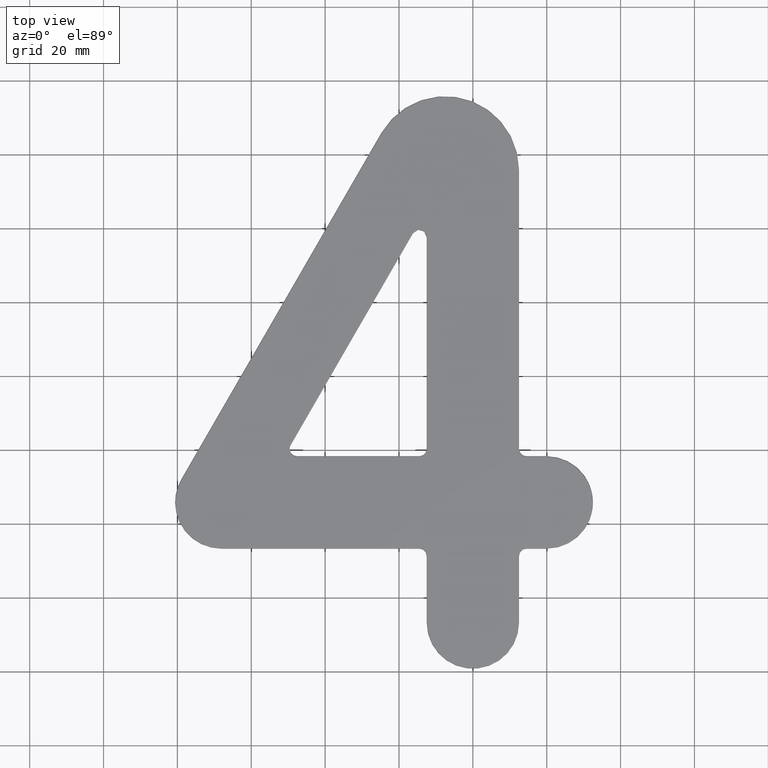
[diagram: clean part render]
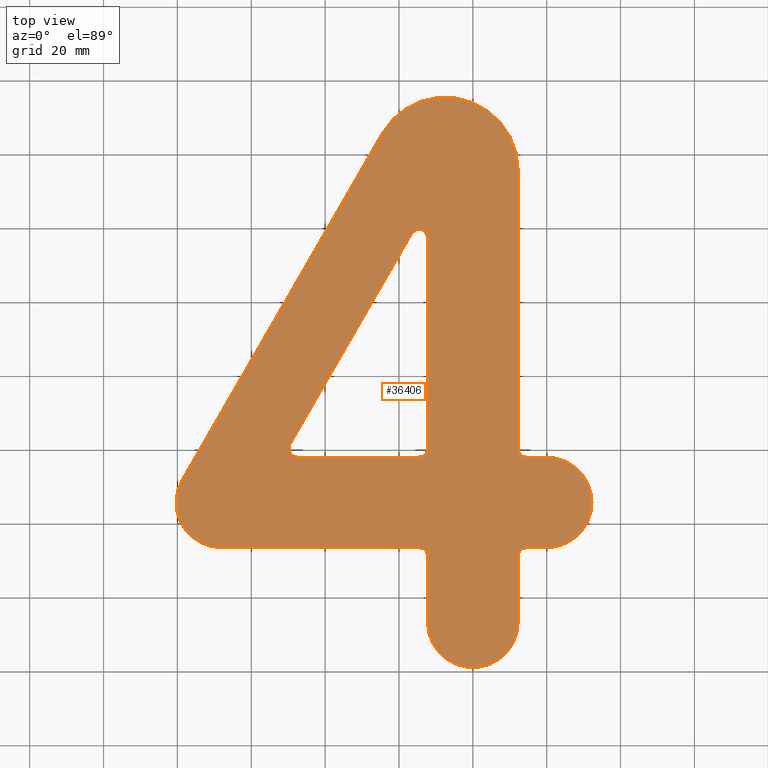
[diagram: same view with one face highlighted and labeled with its STEP entity id]
A machine part, top view. The second image highlights one B-rep face of the part: STEP entity #36406.
In plain terms, the highlighted planar face has unit normal (0, 0, 1).
Its self-contained STEP definition (entity closure, byte-faithful):
#97 = CARTESIAN_POINT ( 'NONE',  ( -14.50000000000002132, 32.75000000000000000, 2.000000000000000000 ) ) ;
#182 = CARTESIAN_POINT ( 'NONE',  ( -14.50000000000000178, 59.50000000000001421, 2.000000000000000000 ) ) ;
#508 = ORIENTED_EDGE ( 'NONE', *, *, #34307, .T. ) ;
#1076 = VERTEX_POINT ( 'NONE', #37342 ) ;
#1148 = DIRECTION ( 'NONE',  ( 1.000000000000000000, 1.261617073437681598E-15, -0.000000000000000000 ) ) ;
#1195 = VERTEX_POINT ( 'NONE', #7301 ) ;
#1328 = EDGE_CURVE ( 'NONE', #19985, #13624, #31249, .T. ) ;
#1474 = ORIENTED_EDGE ( 'NONE', *, *, #7511, .T. ) ;
#1693 = CARTESIAN_POINT ( 'NONE',  ( 12.25000000000000178, 59.50000000000002842, 2.000000000000000000 ) ) ;
#2004 = DIRECTION ( 'NONE',  ( 1.000000000000000000, 0.000000000000000000, 0.000000000000000000 ) ) ;
#2335 = VERTEX_POINT ( 'NONE', #16020 ) ;
#2374 = VERTEX_POINT ( 'NONE', #1693 ) ;
#2572 = VERTEX_POINT ( 'NONE', #27486 ) ;
#2852 = EDGE_LOOP ( 'NONE', ( #22075, #508, #36010, #5248, #38064, #18724, #24200, #31001, #17956, #20619, #1474, #6455, #3796, #29152, #17318 ) ) ;
#3045 = FACE_OUTER_BOUND ( 'NONE', #2852, .T. ) ;
#3188 = DIRECTION ( 'NONE',  ( 1.000000000000000000, 0.000000000000000000, 0.000000000000000000 ) ) ;
#3327 = CARTESIAN_POINT ( 'NONE',  ( 14.50000000000000178, 59.50000000000001421, 2.000000000000000000 ) ) ;
#3717 = VECTOR ( 'NONE', #34112, 1000.000000000000000 ) ;
#3796 = ORIENTED_EDGE ( 'NONE', *, *, #22690, .T. ) ;
#3880 = DIRECTION ( 'NONE',  ( -0.5000000000000008882, -0.8660254037844382635, 0.000000000000000000 ) ) ;
#4032 = CIRCLE ( 'NONE', #37446, 2.250000000000001776 ) ;
#4129 = CARTESIAN_POINT ( 'NONE',  ( -14.49999999999999112, 116.8756443470179534, 2.000000000000000000 ) ) ;
#4317 = AXIS2_PLACEMENT_3D ( 'NONE', #36391, #13110, #3188 ) ;
#5086 = ORIENTED_EDGE ( 'NONE', *, *, #22251, .T. ) ;
#5248 = ORIENTED_EDGE ( 'NONE', *, *, #25990, .T. ) ;
#5308 = VERTEX_POINT ( 'NONE', #6376 ) ;
#6376 = CARTESIAN_POINT ( 'NONE',  ( -12.24999999999999112, 116.8756443470178255, 2.000000000000000000 ) ) ;
#6455 = ORIENTED_EDGE ( 'NONE', *, *, #29032, .T. ) ;
#6563 = CARTESIAN_POINT ( 'NONE',  ( 32.25000000000000000, 45.00000000000000711, 2.000000000000000000 ) ) ;
#6641 = VECTOR ( 'NONE', #17463, 1000.000000000000000 ) ;
#7301 = CARTESIAN_POINT ( 'NONE',  ( -24.60400172474265545, 144.8750000000000284, 2.000000000000000000 ) ) ;
#7511 = EDGE_CURVE ( 'NONE', #2374, #23396, #34806, .T. ) ;
#7585 = EDGE_CURVE ( 'NONE', #22302, #25539, #21576, .T. ) ;
#7595 = VECTOR ( 'NONE', #17344, 1000.000000000000000 ) ;
#7763 = CARTESIAN_POINT ( 'NONE',  ( -58.01953692895862247, 45.99759526419177291, 2.000000000000000000 ) ) ;
#8254 = EDGE_LOOP ( 'NONE', ( #10257, #19743, #25417, #34131, #5086, #33008 ) ) ;
#8567 = CIRCLE ( 'NONE', #18364, 2.249999999999998668 ) ;
#8623 = DIRECTION ( 'NONE',  ( -1.000000000000000000, -2.094707070687897218E-16, 0.000000000000000000 ) ) ;
#8661 = EDGE_CURVE ( 'NONE', #1076, #37090, #14910, .T. ) ;
#8736 = VERTEX_POINT ( 'NONE', #38084 ) ;
#8839 = CARTESIAN_POINT ( 'NONE',  ( -47.62584370867912753, 59.50000000000000711, 2.000000000000000000 ) ) ;
#9061 = DIRECTION ( 'NONE',  ( -0.000000000000000000, -0.000000000000000000, -1.000000000000000000 ) ) ;
#9135 = DIRECTION ( 'NONE',  ( 1.000000000000000000, 0.000000000000000000, 0.000000000000000000 ) ) ;
#9142 = CARTESIAN_POINT ( 'NONE',  ( 12.25000000000000711, 30.49999999999999289, 2.000000000000000000 ) ) ;
#9284 = CARTESIAN_POINT ( 'NONE',  ( -14.50000000000000711, 30.50000000000000711, 2.000000000000000000 ) ) ;
#9582 = AXIS2_PLACEMENT_3D ( 'NONE', #3327, #9061, #30330 ) ;
#9731 = CARTESIAN_POINT ( 'NONE',  ( -7.499999999999992895, 135.0000000000000000, 2.000000000000000000 ) ) ;
#10257 = ORIENTED_EDGE ( 'NONE', *, *, #8661, .T. ) ;
#11102 = FACE_BOUND ( 'NONE', #8254, .T. ) ;
#11530 = CARTESIAN_POINT ( 'NONE',  ( -7.077601392927059136E-15, 57.25000000000000711, 2.000000000000000000 ) ) ;
#11627 = VECTOR ( 'NONE', #1148, 1000.000000000000000 ) ;
#12133 = VECTOR ( 'NONE', #17369, 1000.000000000000000 ) ;
#12174 = VERTEX_POINT ( 'NONE', #13279 ) ;
#12363 = EDGE_CURVE ( 'NONE', #2572, #22302, #8567, .T. ) ;
#12757 = AXIS2_PLACEMENT_3D ( 'NONE', #18437, #36364, #9135 ) ;
#13110 = DIRECTION ( 'NONE',  ( 0.000000000000000000, 0.000000000000000000, 1.000000000000000000 ) ) ;
#13279 = CARTESIAN_POINT ( 'NONE',  ( -12.25000000000000178, 59.50000000000002842, 2.000000000000000000 ) ) ;
#13624 = VERTEX_POINT ( 'NONE', #34029 ) ;
#14297 = EDGE_CURVE ( 'NONE', #35917, #1076, #23399, .T. ) ;
#14334 = CARTESIAN_POINT ( 'NONE',  ( 14.50000000000000888, 30.50000000000001066, 2.000000000000000000 ) ) ;
#14360 = CARTESIAN_POINT ( 'NONE',  ( 2.296212748401284817E-15, 12.49999999999998934, 2.000000000000000000 ) ) ;
#14474 = CIRCLE ( 'NONE', #34044, 12.25000000000001243 ) ;
#14599 = CIRCLE ( 'NONE', #37598, 2.250000000000000444 ) ;
#14910 = LINE ( 'NONE', #7763, #36655 ) ;
#14991 = CARTESIAN_POINT ( 'NONE',  ( -12.25000000000001066, 12.49999999999999112, 2.000000000000000000 ) ) ;
#15001 = LINE ( 'NONE', #9142, #12133 ) ;
#15453 = DIRECTION ( 'NONE',  ( 1.000000000000000000, 0.000000000000000000, 0.000000000000000000 ) ) ;
#15623 = DIRECTION ( 'NONE',  ( 1.000000000000000000, 1.850371707708593813E-14, 0.000000000000000000 ) ) ;
#15666 = LINE ( 'NONE', #97, #7595 ) ;
#15993 = CARTESIAN_POINT ( 'NONE',  ( -47.62584370867909911, 57.25000000000000000, 2.000000000000000000 ) ) ;
#16020 = CARTESIAN_POINT ( 'NONE',  ( -14.50000000000002309, 32.75000000000000000, 2.000000000000000000 ) ) ;
#16084 = CARTESIAN_POINT ( 'NONE',  ( -12.25000000000000711, 30.49999999999999289, 2.000000000000000000 ) ) ;
#16116 = DIRECTION ( 'NONE',  ( -1.814069536702611800E-16, -1.000000000000000000, 0.000000000000000000 ) ) ;
#16182 = CARTESIAN_POINT ( 'NONE',  ( 12.25000000000001421, 12.49999999999999112, 2.000000000000000000 ) ) ;
#17060 = LINE ( 'NONE', #18564, #3717 ) ;
#17318 = ORIENTED_EDGE ( 'NONE', *, *, #33075, .T. ) ;
#17344 = DIRECTION ( 'NONE',  ( 1.000000000000000000, 2.588087948007469279E-16, -0.000000000000000000 ) ) ;
#17369 = DIRECTION ( 'NONE',  ( -2.891205793294677340E-16, 1.000000000000000000, 0.000000000000000000 ) ) ;
#17463 = DIRECTION ( 'NONE',  ( -1.000000000000000000, 0.000000000000000000, 0.000000000000000000 ) ) ;
#17584 = DIRECTION ( 'NONE',  ( 0.000000000000000000, 0.000000000000000000, 1.000000000000000000 ) ) ;
#17796 = EDGE_CURVE ( 'NONE', #13624, #23073, #34565, .T. ) ;
#17956 = ORIENTED_EDGE ( 'NONE', *, *, #17796, .T. ) ;
#18185 = DIRECTION ( 'NONE',  ( 1.000000000000000000, 0.000000000000000000, 0.000000000000000000 ) ) ;
#18325 = DIRECTION ( 'NONE',  ( -0.000000000000000000, -0.000000000000000000, -1.000000000000000000 ) ) ;
#18364 = AXIS2_PLACEMENT_3D ( 'NONE', #14334, #29126, #2004 ) ;
#18437 = CARTESIAN_POINT ( 'NONE',  ( 20.00000000000000355, 45.00000000000000711, 2.000000000000000000 ) ) ;
#18564 = CARTESIAN_POINT ( 'NONE',  ( -12.25000000000001243, 12.49999999999999112, 2.000000000000000000 ) ) ;
#18580 = CARTESIAN_POINT ( 'NONE',  ( -14.50000000000001599, 57.25000000000000711, 2.000000000000000000 ) ) ;
#18689 = DIRECTION ( 'NONE',  ( 6.892940964146254661E-17, 1.000000000000000000, -0.000000000000000000 ) ) ;
#18724 = ORIENTED_EDGE ( 'NONE', *, *, #7585, .T. ) ;
#18895 = DIRECTION ( 'NONE',  ( -0.000000000000000000, -0.000000000000000000, -1.000000000000000000 ) ) ;
#19233 = VERTEX_POINT ( 'NONE', #16182 ) ;
#19451 = AXIS2_PLACEMENT_3D ( 'NONE', #14360, #17584, #32747 ) ;
#19743 = ORIENTED_EDGE ( 'NONE', *, *, #31456, .T. ) ;
#19762 = VERTEX_POINT ( 'NONE', #18580 ) ;
#19985 = VERTEX_POINT ( 'NONE', #6563 ) ;
#20445 = EDGE_CURVE ( 'NONE', #2335, #36228, #14599, .T. ) ;
#20619 = ORIENTED_EDGE ( 'NONE', *, *, #35171, .T. ) ;
#20635 = VECTOR ( 'NONE', #18689, 1000.000000000000000 ) ;
#21576 = LINE ( 'NONE', #25117, #11627 ) ;
#22075 = ORIENTED_EDGE ( 'NONE', *, *, #20445, .T. ) ;
#22251 = EDGE_CURVE ( 'NONE', #19762, #35917, #29673, .T. ) ;
#22275 = CARTESIAN_POINT ( 'NONE',  ( 2.296212748401284817E-15, 12.49999999999998934, 2.000000000000000000 ) ) ;
#22302 = VERTEX_POINT ( 'NONE', #37146 ) ;
#22603 = CARTESIAN_POINT ( 'NONE',  ( -68.12177826491084431, 32.75000000000000711, 2.000000000000000000 ) ) ;
#22690 = EDGE_CURVE ( 'NONE', #1195, #8736, #37209, .T. ) ;
#22790 = EDGE_CURVE ( 'NONE', #12174, #19762, #4032, .T. ) ;
#22864 = DIRECTION ( 'NONE',  ( 0.5000000000000009992, 0.8660254037844380415, -0.000000000000000000 ) ) ;
#23073 = VERTEX_POINT ( 'NONE', #26000 ) ;
#23263 = AXIS2_PLACEMENT_3D ( 'NONE', #33097, #36238, #18185 ) ;
#23396 = VERTEX_POINT ( 'NONE', #30971 ) ;
#23399 = CIRCLE ( 'NONE', #32046, 2.249999999999995115 ) ;
#23611 = CARTESIAN_POINT ( 'NONE',  ( 14.50000000000001599, 57.25000000000000711, 2.000000000000000000 ) ) ;
#23849 = VERTEX_POINT ( 'NONE', #14991 ) ;
#23898 = DIRECTION ( 'NONE',  ( -0.000000000000000000, -0.000000000000000000, -1.000000000000000000 ) ) ;
#24122 = CARTESIAN_POINT ( 'NONE',  ( 20.00000000000000000, 32.75000000000001421, 2.000000000000000000 ) ) ;
#24136 = CIRCLE ( 'NONE', #23263, 12.24999999999998934 ) ;
#24200 = ORIENTED_EDGE ( 'NONE', *, *, #28589, .T. ) ;
#24399 = DIRECTION ( 'NONE',  ( 1.000000000000000000, 0.000000000000000000, 0.000000000000000000 ) ) ;
#24860 = EDGE_CURVE ( 'NONE', #5308, #12174, #26855, .T. ) ;
#25103 = CARTESIAN_POINT ( 'NONE',  ( -12.25000000000001066, 12.49999999999999112, 2.000000000000000000 ) ) ;
#25117 = CARTESIAN_POINT ( 'NONE',  ( 20.00000000000000000, 32.75000000000001421, 2.000000000000000000 ) ) ;
#25349 = CARTESIAN_POINT ( 'NONE',  ( -78.73058946127019908, 51.12499999999999289, 2.000000000000000000 ) ) ;
#25417 = ORIENTED_EDGE ( 'NONE', *, *, #24860, .T. ) ;
#25539 = VERTEX_POINT ( 'NONE', #24122 ) ;
#25793 = CIRCLE ( 'NONE', #4317, 12.24999999999999645 ) ;
#25990 = EDGE_CURVE ( 'NONE', #19233, #2572, #15001, .T. ) ;
#26000 = CARTESIAN_POINT ( 'NONE',  ( 14.50000000000001776, 57.25000000000000711, 2.000000000000000000 ) ) ;
#26855 = LINE ( 'NONE', #25103, #32058 ) ;
#27432 = DIRECTION ( 'NONE',  ( -0.000000000000000000, -0.000000000000000000, -1.000000000000000000 ) ) ;
#27455 = DIRECTION ( 'NONE',  ( 1.000000000000000000, 0.000000000000000000, 0.000000000000000000 ) ) ;
#27486 = CARTESIAN_POINT ( 'NONE',  ( 12.25000000000000711, 30.49999999999999289, 2.000000000000000000 ) ) ;
#28326 = DIRECTION ( 'NONE',  ( 0.000000000000000000, 0.000000000000000000, 1.000000000000000000 ) ) ;
#28369 = EDGE_CURVE ( 'NONE', #23849, #19233, #14474, .T. ) ;
#28589 = EDGE_CURVE ( 'NONE', #25539, #19985, #25793, .T. ) ;
#29032 = EDGE_CURVE ( 'NONE', #23396, #1195, #31442, .T. ) ;
#29126 = DIRECTION ( 'NONE',  ( -0.000000000000000000, -0.000000000000000000, -1.000000000000000000 ) ) ;
#29152 = ORIENTED_EDGE ( 'NONE', *, *, #34190, .T. ) ;
#29171 = VECTOR ( 'NONE', #3880, 999.9999999999998863 ) ;
#29673 = LINE ( 'NONE', #11530, #32541 ) ;
#30197 = CARTESIAN_POINT ( 'NONE',  ( -16.44855715851503675, 118.0006443470178397, 2.000000000000000000 ) ) ;
#30330 = DIRECTION ( 'NONE',  ( 1.000000000000000000, 0.000000000000000000, 0.000000000000000000 ) ) ;
#30971 = CARTESIAN_POINT ( 'NONE',  ( 12.25000000000000711, 135.0000000000000000, 2.000000000000000000 ) ) ;
#31001 = ORIENTED_EDGE ( 'NONE', *, *, #1328, .T. ) ;
#31249 = CIRCLE ( 'NONE', #12757, 12.24999999999999645 ) ;
#31379 = DIRECTION ( 'NONE',  ( 1.000000000000000000, 0.000000000000000000, 0.000000000000000000 ) ) ;
#31411 = DIRECTION ( 'NONE',  ( 1.000000000000000000, 8.018277400070585813E-14, 0.000000000000000000 ) ) ;
#31442 = CIRCLE ( 'NONE', #38632, 19.75000000000001066 ) ;
#31456 = EDGE_CURVE ( 'NONE', #37090, #5308, #35598, .T. ) ;
#32046 = AXIS2_PLACEMENT_3D ( 'NONE', #8839, #23898, #27455 ) ;
#32058 = VECTOR ( 'NONE', #16116, 1000.000000000000000 ) ;
#32541 = VECTOR ( 'NONE', #8623, 1000.000000000000000 ) ;
#32747 = DIRECTION ( 'NONE',  ( 1.000000000000000000, 0.000000000000000000, -0.000000000000000000 ) ) ;
#32877 = PLANE ( 'NONE',  #19451 ) ;
#33008 = ORIENTED_EDGE ( 'NONE', *, *, #14297, .T. ) ;
#33075 = EDGE_CURVE ( 'NONE', #34568, #2335, #15666, .T. ) ;
#33097 = CARTESIAN_POINT ( 'NONE',  ( -68.12177826491085852, 45.00000000000000000, 2.000000000000000000 ) ) ;
#33494 = CARTESIAN_POINT ( 'NONE',  ( 12.25000000000000711, 135.0000000000000000, 2.000000000000000000 ) ) ;
#33697 = DIRECTION ( 'NONE',  ( 0.000000000000000000, 0.000000000000000000, 1.000000000000000000 ) ) ;
#33862 = CIRCLE ( 'NONE', #9582, 2.250000000000001776 ) ;
#34029 = CARTESIAN_POINT ( 'NONE',  ( 20.00000000000000355, 57.25000000000000000, 2.000000000000000000 ) ) ;
#34044 = AXIS2_PLACEMENT_3D ( 'NONE', #22275, #28326, #31379 ) ;
#34112 = DIRECTION ( 'NONE',  ( -2.891205793294678326E-16, -1.000000000000000000, 0.000000000000000000 ) ) ;
#34131 = ORIENTED_EDGE ( 'NONE', *, *, #22790, .T. ) ;
#34190 = EDGE_CURVE ( 'NONE', #8736, #34568, #24136, .T. ) ;
#34307 = EDGE_CURVE ( 'NONE', #36228, #23849, #17060, .T. ) ;
#34565 = LINE ( 'NONE', #23611, #6641 ) ;
#34568 = VERTEX_POINT ( 'NONE', #22603 ) ;
#34806 = LINE ( 'NONE', #33494, #20635 ) ;
#35171 = EDGE_CURVE ( 'NONE', #23073, #2374, #33862, .T. ) ;
#35598 = CIRCLE ( 'NONE', #36636, 2.249999999999996891 ) ;
#35917 = VERTEX_POINT ( 'NONE', #15993 ) ;
#36010 = ORIENTED_EDGE ( 'NONE', *, *, #28369, .T. ) ;
#36228 = VERTEX_POINT ( 'NONE', #16084 ) ;
#36238 = DIRECTION ( 'NONE',  ( 0.000000000000000000, 0.000000000000000000, 1.000000000000000000 ) ) ;
#36364 = DIRECTION ( 'NONE',  ( 0.000000000000000000, 0.000000000000000000, 1.000000000000000000 ) ) ;
#36391 = CARTESIAN_POINT ( 'NONE',  ( 20.00000000000000355, 45.00000000000000711, 2.000000000000000000 ) ) ;
#36406 = ADVANCED_FACE ( 'NONE', ( #11102, #3045 ), #32877, .T. ) ;
#36636 = AXIS2_PLACEMENT_3D ( 'NONE', #4129, #18895, #31411 ) ;
#36655 = VECTOR ( 'NONE', #22864, 1000.000000000000000 ) ;
#37090 = VERTEX_POINT ( 'NONE', #30197 ) ;
#37146 = CARTESIAN_POINT ( 'NONE',  ( 14.50000000000001954, 32.75000000000000711, 2.000000000000000000 ) ) ;
#37209 = LINE ( 'NONE', #25349, #29171 ) ;
#37342 = CARTESIAN_POINT ( 'NONE',  ( -49.57440086719410033, 60.62500000000002842, 2.000000000000000000 ) ) ;
#37446 = AXIS2_PLACEMENT_3D ( 'NONE', #182, #27432, #24399 ) ;
#37598 = AXIS2_PLACEMENT_3D ( 'NONE', #9284, #18325, #15623 ) ;
#38064 = ORIENTED_EDGE ( 'NONE', *, *, #12363, .T. ) ;
#38084 = CARTESIAN_POINT ( 'NONE',  ( -78.73058946127019908, 51.12500000000000000, 2.000000000000000000 ) ) ;
#38632 = AXIS2_PLACEMENT_3D ( 'NONE', #9731, #33697, #15453 ) ;